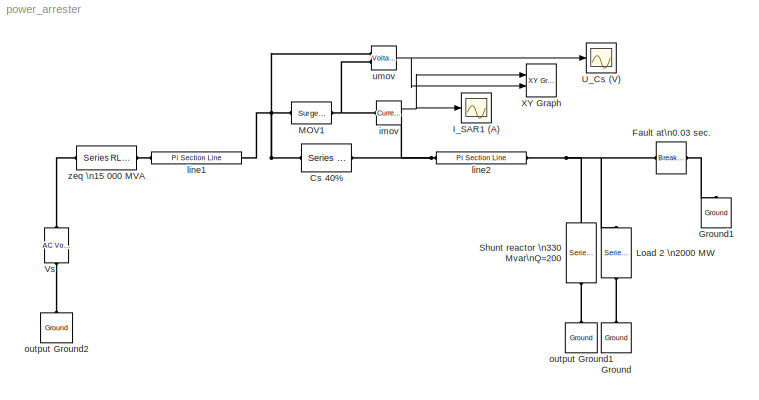
MODEL power_arrester
KIND model
BLOCK [Reference]  MOV1  REF=powerlib/Elements/Surge Arrester
  AttributesFormatString = \\n
  BreakLoop = off
  Columns = 30
  Measurements = None
  MoreParameters = off
  Ports = [0, 0, 0, 0, 0, 1, 1]
  ProtectionVoltage = 185e3
  ReferenceCurrent = 500
  Segment1 = [.955 50]
  Segment2 = [1.0 25]
  Segment3 = [.9915 16.5]
  ShowPortLabels = on
  SourceBlock = powerlib/Elements/Surge Arrester
  SourceType = Surge Arrester
BLOCK [Reference] Cs 40%  REF=powerlib/Elements/Series RLC Branch
  AttributesFormatString = \\n
  Capacitance = 101.4e-6
  Inductance = 0
  LConnTagsString = __new0
  LeftPortType = p1
  Measurements = None
  PhysicalDomain = powersysdomain
  Ports = [0, 0, 0, 0, 0, 1, 1]
  RConnTagsString = __new0
  Resistance = 0
  RightPortType = p1
  SourceBlock = powerlib/Elements/Series RLC Branch
  SourceType = Series RLC Branch
  SubClassName = unknown
BLOCK [Reference] Fault at\n0.03 sec.  REF=powerlib/Elements/Breaker
  AttributesFormatString = \\n
  BreakerResistance = 1
  External = off
  InitialState = 0
  Measurements = None
  Ports = [0, 0, 0, 0, 0, 1, 1]
  ShowPortLabels = on
  SnubberCapacitance = 0
  SnubberResistance = inf
  SourceBlock = powerlib/Elements/Breaker
  SourceType = Breaker
  SwitchingTimes = [ 30e-3  100e-3 ]
BLOCK [Reference] Ground  REF=powerlib/Elements/Ground
  AttributesFormatString = \\n
  LConnTagsString = a
  LeftPortType = p1
  PhysicalDomain = powersysdomain
  Ports = [0, 0, 0, 0, 0, 1]
  RightPortType = p1
  SourceBlock = powerlib/Elements/Ground
  SourceType = Ground
  SubClassName = unknown
BLOCK [Reference] Ground1  REF=powerlib/Elements/Ground
  AttributesFormatString = \\n
  LConnTagsString = a
  LeftPortType = p1
  PhysicalDomain = powersysdomain
  Ports = [0, 0, 0, 0, 0, 1]
  RightPortType = p1
  SourceBlock = powerlib/Elements/Ground
  SourceType = Ground
  SubClassName = unknown
BLOCK [Scope] I_SAR1 (A)
  DataFormat = Array
  MaxDataPoints = 500000
  NumInputPorts = 1
  Ports = [1]
  TickLabels = on
  TimeRange = 0.1
  YMax = 10000
  YMin = -5000
BLOCK [Reference] Load 2 \n2000 MW  REF=powerlib/Elements/Series RLC Load
  ActivePower = 2000e6/3
  AttributesFormatString = \\n
  CapacitivePower = 0
  InductivePower = 0
  LConnTagsString = a
  LeftPortType = p1
  Measurements = None
  NominalFrequency = 60
  NominalVoltage = 735e3/sqrt(3)
  PhysicalDomain = powersysdomain
  Ports = [0, 0, 0, 0, 0, 1, 1]
  RConnTagsString = __new0
  RightPortType = p1
  SourceBlock = powerlib/Elements/Series RLC Load
  SourceType = Series RLC Load
  SubClassName = unknown
BLOCK [Reference] Shunt reactor \n330 Mvar\nQ=200  REF=powerlib/Elements/Series RLC Load
  ActivePower = 330e6/3/200
  AttributesFormatString = \\n
  CapacitivePower = 0
  InductivePower = 330e6/3
  LConnTagsString = a
  LeftPortType = p1
  Measurements = None
  NominalFrequency = 60
  NominalVoltage = 735e3/sqrt(3)
  PhysicalDomain = powersysdomain
  Ports = [0, 0, 0, 0, 0, 1, 1]
  RConnTagsString = __new0
  RightPortType = p1
  SourceBlock = powerlib/Elements/Series RLC Load
  SourceType = Series RLC Load
  SubClassName = unknown
BLOCK [Scope] U_Cs (V)
  DataFormat = Array
  MaxDataPoints = 500000
  NumInputPorts = 1
  Ports = [1]
  TickLabels = on
  TimeRange = 0.1
  YMax = 200000
  YMin = -200000
BLOCK [Reference] Vs  REF=powerlib/Electrical\nSources/AC Voltage Source
  Amplitude = 735e3/sqrt(3)*sqrt(2)
  AttributesFormatString = \\n
  Description = source block
  Frequency = 60
  Measurements = None
  Phase = 0
  Ports = [0, 0, 0, 0, 0, 1, 1]
  SampleTime = 0
  ShowPortLabels = on
  SourceBlock = powerlib/Electrical\nSources/AC Voltage Source
  SourceType = AC Voltage Source
BLOCK [Reference] XY Graph  REF=simulink/Sinks/XY Graph
  Ports = [2]
  ShowPortLabels = on
  SourceBlock = simulink/Sinks/XY Graph
  SourceType = XY scope.
  st = -1
  xmax = 6000
  xmin = -6000
  ymax = 2e5
  ymin = -2e5
BLOCK [Reference] imov  REF=powerlib/Measurements/Current Measurement
  AttributesFormatString = \\n
  OutputType = Magnitude
  PSBequivalent = 0
  PhasorSimulation = off
  Ports = [0, 1, 0, 0, 0, 1, 1]
  ShowPortLabels = on
  SourceBlock = powerlib/Measurements/Current Measurement
  SourceType = Current Measurement
  Tag = PoWeRsYsTeMmEaSuReMeNt
BLOCK [Reference] line1  REF=powerlib/Elements/Pi Section Line
  AttributesFormatString = \\n
  Capacitance = 13.41e-9
  Frequency = 60
  Inductance = 0.8674e-3
  LConnTagsString = __new0
  LeftPortType = p1
  Length = 100
  Measurements = None
  PhysicalDomain = powersysdomain
  PiSections = 2
  Ports = [0, 0, 0, 0, 0, 1, 1]
  RConnTagsString = __new0
  Resistance = 0.011
  RightPortType = p1
  SourceBlock = powerlib/Elements/Pi Section Line
  SourceType = Pi Section Line
  SubClassName = unknown
BLOCK [Reference] line2  REF=powerlib/Elements/Pi Section Line
  AttributesFormatString = \\n
  Capacitance = 13.41e-9
  Frequency = 60
  Inductance = 0.8674e-3
  LConnTagsString = __new0
  LeftPortType = p1
  Length = 100
  Measurements = None
  PhysicalDomain = powersysdomain
  PiSections = 2
  Ports = [0, 0, 0, 0, 0, 1, 1]
  RConnTagsString = __new0
  Resistance = 0.011
  RightPortType = p1
  SourceBlock = powerlib/Elements/Pi Section Line
  SourceType = Pi Section Line
  SubClassName = unknown
BLOCK [Reference] output Ground1  REF=powerlib/Elements/Ground
  AttributesFormatString = \\n
  LConnTagsString = a
  LeftPortType = p1
  PhysicalDomain = powersysdomain
  Ports = [0, 0, 0, 0, 0, 1]
  RightPortType = p1
  SourceBlock = powerlib/Elements/Ground
  SourceType = Ground
  SubClassName = unknown
BLOCK [Reference] output Ground2  REF=powerlib/Elements/Ground
  AttributesFormatString = \\n
  LConnTagsString = a
  LeftPortType = p1
  PhysicalDomain = powersysdomain
  Ports = [0, 0, 0, 0, 0, 1]
  RightPortType = p1
  SourceBlock = powerlib/Elements/Ground
  SourceType = Ground
  SubClassName = unknown
BLOCK [Reference] umov  REF=powerlib/Measurements/Voltage Measurement
  AttributesFormatString = \\n
  OutputType = Magnitude
  PSBequivalent = 0
  PhasorSimulation = off
  Ports = [0, 1, 0, 0, 0, 2]
  ShowPortLabels = on
  SourceBlock = powerlib/Measurements/Voltage Measurement
  SourceType = Voltage Measurement
  Tag = PoWeRsYsTeMmEaSuReMeNt
BLOCK [Reference] zeq \n15 000 MVA  REF=powerlib/Elements/Series RLC Branch
  AttributesFormatString = \\n
  Capacitance = inf
  Inductance = 95.5e-3
  LConnTagsString = __new0
  LeftPortType = p1
  Measurements = None
  PhysicalDomain = powersysdomain
  Ports = [0, 0, 0, 0, 0, 1, 1]
  RConnTagsString = __new0
  Resistance = 3.6
  RightPortType = p1
  SourceBlock = powerlib/Elements/Series RLC Branch
  SourceType = Series RLC Branch
  SubClassName = unknown
NET imov:1 -> I_SAR1 (A):1, XY Graph:1
NET umov:1 -> U_Cs (V):1, XY Graph:2
PNET net1:  MOV1:LConn1 -- Cs 40%:LConn1 -- line1:RConn1 -- umov:LConn1
PNET net2:  MOV1:RConn1 -- imov:LConn1 -- umov:LConn2
PNET net3: Cs 40%:RConn1 -- imov:RConn1 -- line2:LConn1
PNET net4: Fault at\n0.03 sec.:LConn1 -- Load 2 \n2000 MW:LConn1 -- Shunt reactor \n330 Mvar\nQ=200:RConn1 -- line2:RConn1
PLINE Fault at\n0.03 sec.:RConn1 -- Ground1:LConn1
PLINE Ground:LConn1 -- Load 2 \n2000 MW:RConn1
PLINE Shunt reactor \n330 Mvar\nQ=200:LConn1 -- output Ground1:LConn1
PLINE Vs:LConn1 -- output Ground2:LConn1
PLINE Vs:RConn1 -- zeq \n15 000 MVA:LConn1
PLINE line1:LConn1 -- zeq \n15 000 MVA:RConn1
note: NET lines group one-source signal fan-out (src -> all destinations, sorted); 1:1 wires keep LINE; PNET lines group multi-terminal physical nets as a canonical sorted terminal list (undirected conserving connections); 2-terminal nets keep the pairwise PLINE form
